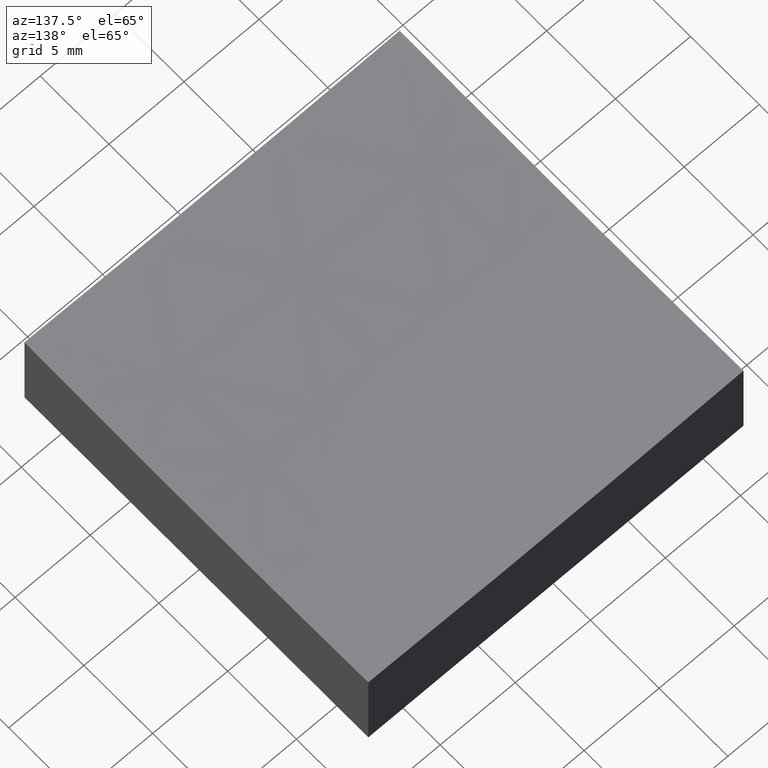
[diagram: clean part render]
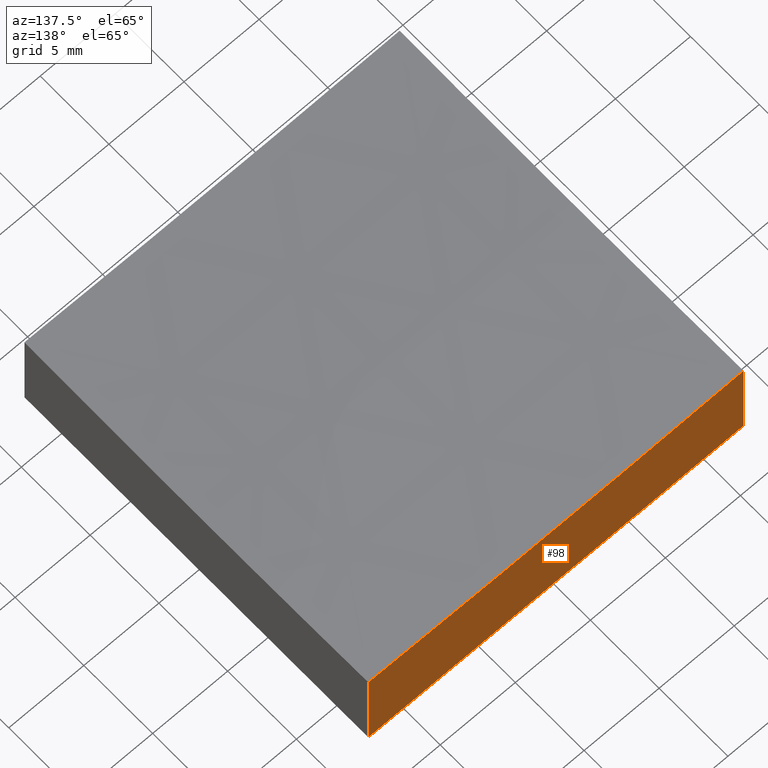
[diagram: same view with one face highlighted and labeled with its STEP entity id]
A machine part, auxiliary view. The second image highlights one B-rep face of the part: STEP entity #98.
In plain terms, the highlighted planar face has unit normal (0, 1, 0).
Its self-contained STEP definition (entity closure, byte-faithful):
#5 = EDGE_CURVE ( 'NONE', #32, #72, #222, .T. ) ;
#8 = LINE ( 'NONE', #149, #60 ) ;
#10 = ORIENTED_EDGE ( 'NONE', *, *, #5, .F. ) ;
#14 = DIRECTION ( 'NONE',  ( 0.0000000000000000000, 1.000000000000000000, 0.0000000000000000000 ) ) ;
#19 = LINE ( 'NONE', #126, #117 ) ;
#26 = ORIENTED_EDGE ( 'NONE', *, *, #58, .F. ) ;
#30 = ORIENTED_EDGE ( 'NONE', *, *, #38, .T. ) ;
#32 = VERTEX_POINT ( 'NONE', #185 ) ;
#38 = EDGE_CURVE ( 'NONE', #210, #72, #19, .T. ) ;
#42 = DIRECTION ( 'NONE',  ( 1.000000000000000000, 0.0000000000000000000, 0.0000000000000000000 ) ) ;
#58 = EDGE_CURVE ( 'NONE', #210, #73, #181, .T. ) ;
#59 = PLANE ( 'NONE',  #161 ) ;
#60 = VECTOR ( 'NONE', #122, 1000.000000000000000 ) ;
#72 = VERTEX_POINT ( 'NONE', #106 ) ;
#73 = VERTEX_POINT ( 'NONE', #203 ) ;
#98 = ADVANCED_FACE ( 'NONE', ( #99 ), #59, .T. ) ;
#99 = FACE_OUTER_BOUND ( 'NONE', #115, .T. ) ;
#101 = AXIS2_PLACEMENT_3D ( 'NONE', #143, #107, #123 ) ;
#106 = CARTESIAN_POINT ( 'NONE',  ( 12.50000000000000000, 12.50000000000000000, 0.0000000000000000000 ) ) ;
#107 = DIRECTION ( 'NONE',  ( 0.0000000000000000000, 1.000000000000000000, 0.0000000000000000000 ) ) ;
#115 = EDGE_LOOP ( 'NONE', ( #26, #30, #10, #190 ) ) ;
#117 = VECTOR ( 'NONE', #165, 1000.000000000000000 ) ;
#122 = DIRECTION ( 'NONE',  ( -0.0000000000000000000, -0.0000000000000000000, -1.000000000000000000 ) ) ;
#123 = DIRECTION ( 'NONE',  ( 0.0000000000000000000, 0.0000000000000000000, 1.000000000000000000 ) ) ;
#126 = CARTESIAN_POINT ( 'NONE',  ( 12.50000000000000000, 12.50000000000000000, 20.00000000000000000 ) ) ;
#143 = CARTESIAN_POINT ( 'NONE',  ( 4.972066004538253326E-14, 12.50000000000000000, 406.0000000000000000 ) ) ;
#149 = CARTESIAN_POINT ( 'NONE',  ( -12.50000000000000000, 12.50000000000000000, 20.00000000000000000 ) ) ;
#159 = VECTOR ( 'NONE', #42, 1000.000000000000000 ) ;
#161 = AXIS2_PLACEMENT_3D ( 'NONE', #200, #14, #182 ) ;
#165 = DIRECTION ( 'NONE',  ( -0.0000000000000000000, -0.0000000000000000000, -1.000000000000000000 ) ) ;
#169 = CARTESIAN_POINT ( 'NONE',  ( -12.50000000000000000, 12.50000000000000000, 0.0000000000000000000 ) ) ;
#179 = CARTESIAN_POINT ( 'NONE',  ( 12.50000000000000000, 12.50000000000000000, 6.390815921355486040 ) ) ;
#181 = CIRCLE ( 'NONE', #101, 399.8046397929869613 ) ;
#182 = DIRECTION ( 'NONE',  ( 0.0000000000000000000, -0.0000000000000000000, 1.000000000000000000 ) ) ;
#185 = CARTESIAN_POINT ( 'NONE',  ( -12.50000000000000000, 12.50000000000000000, 0.0000000000000000000 ) ) ;
#190 = ORIENTED_EDGE ( 'NONE', *, *, #198, .F. ) ;
#198 = EDGE_CURVE ( 'NONE', #73, #32, #8, .T. ) ;
#200 = CARTESIAN_POINT ( 'NONE',  ( -12.50000000000000000, 12.50000000000000000, 20.00000000000000000 ) ) ;
#203 = CARTESIAN_POINT ( 'NONE',  ( -12.50000000000000000, 12.50000000000000000, 6.390815921355486040 ) ) ;
#210 = VERTEX_POINT ( 'NONE', #179 ) ;
#222 = LINE ( 'NONE', #169, #159 ) ;